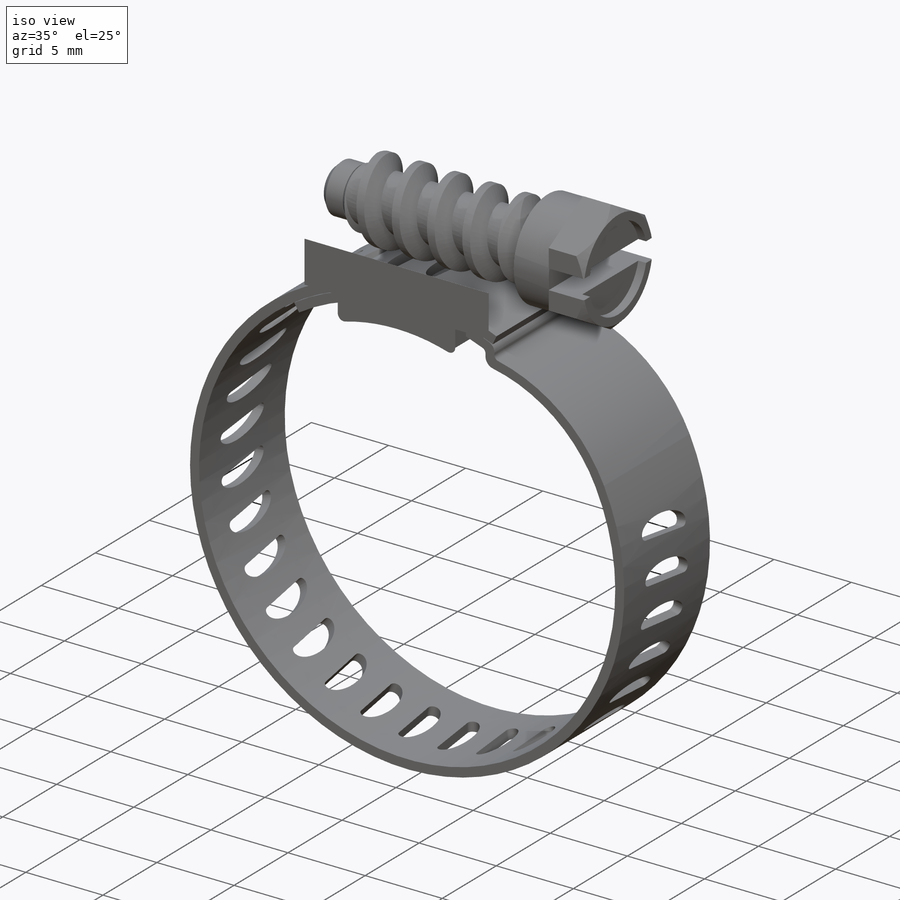
[diagram: iso view]
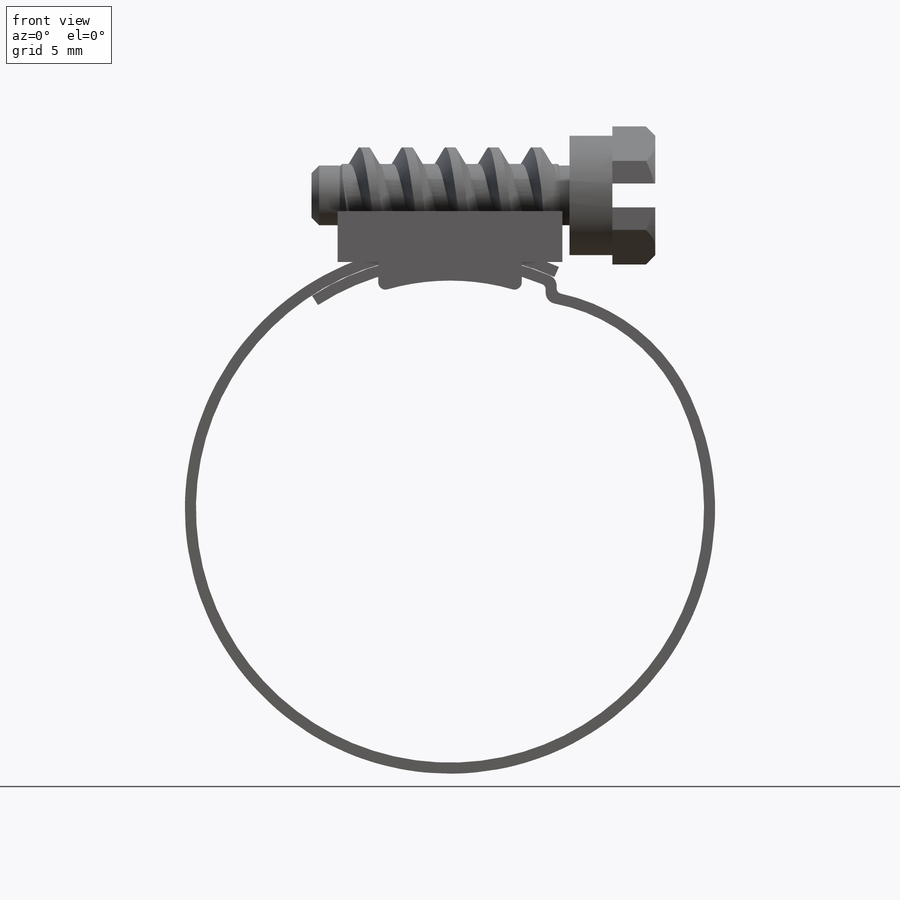
[diagram: front view]
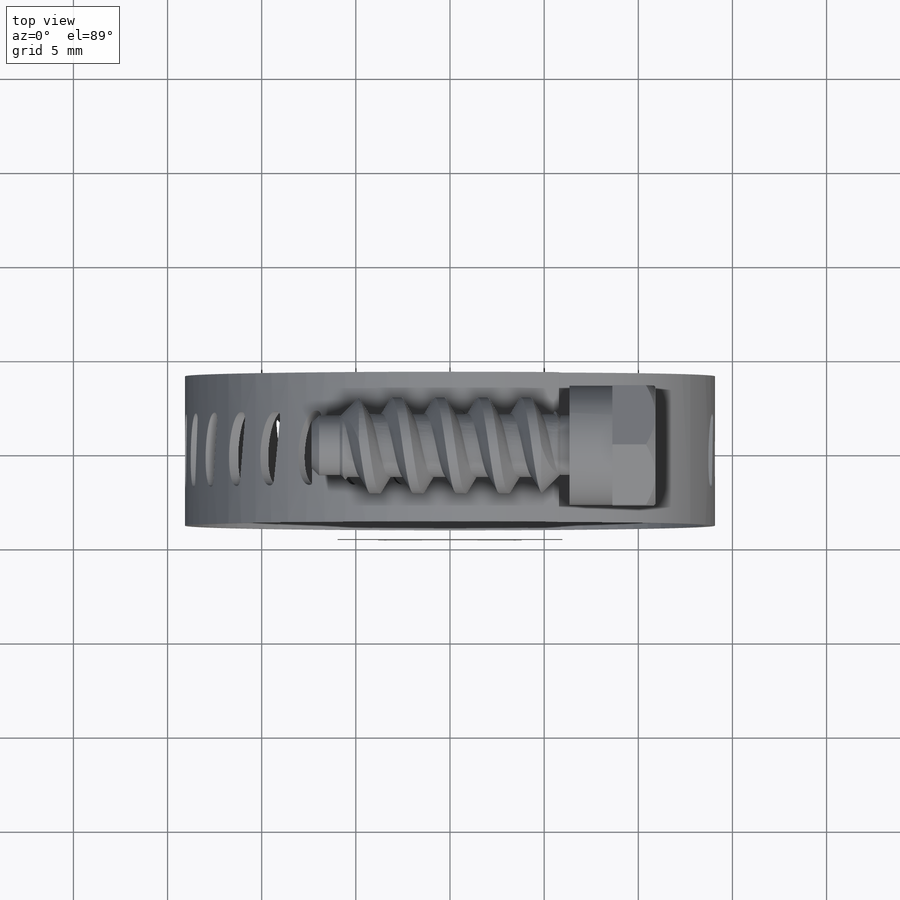
[diagram: top view]
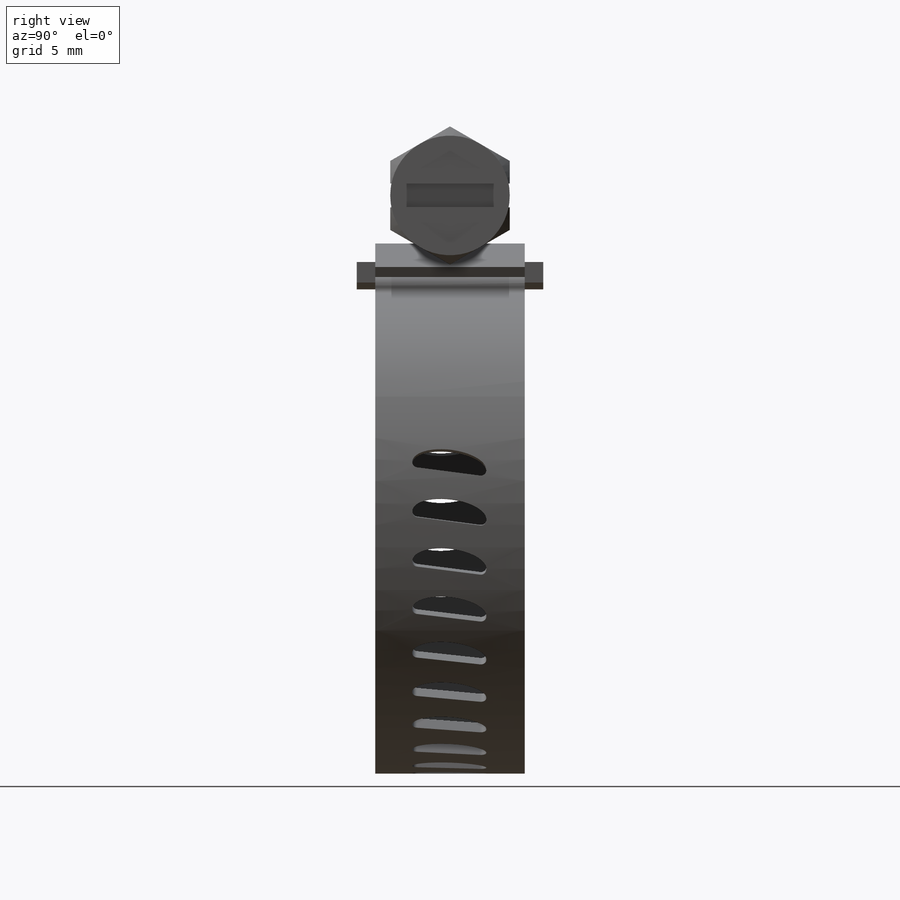
[diagram: right view]
SOLIDWORKS PART (.sldprt)
format: sldprt  version: not decoded by parser v0  size: 1,416,704 bytes
history: native  units: mm
features: sketch x19, extrude x5, fillet x5, cut_extrude x4, plane x2, revolve x2, chamfer x2, material x1, shell x1, helix x1, sweep x1, cut_revolve x1 (+16 scaffold rows collapsed; 1 parser-record rows omitted)
feature tree (61):
  scaffold x16  (default folders/planes/origin — collapsed)
  material  "Material <not specified>"
  sketch  "Sketch1"  dims[c1.Clamp ID=26.9875mm c1.D7=~154.447183mm c1.D3=11.176mm c1.Hex Size=6.35mm c1.Housing Lg=~18.25625mm c1.D5=12.7mm c1.D6=~1.004094mm c2.D7=~1.00584mm c2.D8=7.62mm c2.D9=4.7625mm c2.D10=0.3175mm c3.D7=~1.38684mm c3.D11=~0.33528mm c3.D3=11.176mm c3.D10=0.4445mm c4.D11=~6.41477mm c4.Housing Ht=8.636mm c4.Band Thickness=0.5842mm c4.D1=0.0508mm c4.D2=0.5842mm]
  sketch  "Sketch2"  dims[c1.D1=~155.874121mm c1.D4=57.15mm c1.D5=~9.312275mm c1.D8=~37.959746mm c2.D1=~154.729866mm c3.D1=7.5deg c4.D1=~154.56916mm c5.D1=7.5deg c5.D2=~154.56916mm c6.D2=3.0deg c6.D3=~151.773644mm c7.D3=45.0deg c8.D3=~154.56916mm c9.D3=30.0deg c9.D4=~155.758025mm c10.D4=30.0deg c10.D1=0.6096mm c10.D2=~155.395674mm c11.D2=~49.070947deg c11.D3=1143.0mm c12.D2=45.0deg c12.D1=0.6096mm c12.D4=1.5875mm c12.D3=57.15mm c13.D3=~41.560504deg c13.D4=57.15mm c14.D4=45.0deg c15.D4=57.15mm c15.D2=~14.799556mm c15.D1=~1.465674mm c16.D1=45.0deg c16.D2=0.6096mm c17.D1=~154.785368mm c18.D1=45.0deg c18.D2=~3.544094mm c18.D5=~6.763743mm c19.D1=~1.750902mm c20.D1=45.0deg c20.D6=0.8763mm c20.D7=0.6096mm c21.D1=~1.150524mm c22.D1=45.0deg c22.D7=0.8763mm c23.D1=~1.965947mm c24.D1=25.0deg c24.D8=~34.403213mm c25.D1=12.7mm c25.D4=~69.475558mm c25.D5=~3.544094mm c25.D8=~9.257802mm c25.D3=0.6096mm c25.D6=0.6096mm]
  plane  "Plane2"  Offset=7.9375mm Band Width=7.9375mm
  parser-record x1  (decoder bookkeeping rows leaked as tree rows — omitted from the tree; the rows remain in map.json)
  sketch  "Sketch3"  dims[c1.D1=4.7625mm c1.Housing Width=9.906mm c1.D3=1.5875mm c1.D2=0.4953mm c2.D3=~0.842326mm c2.D4=3.175mm c2.D1=3.175mm]
  extrude  "Boss-Extrude1"  [1 undecoded]
  shell  "Shell2"  Thickness=0.4953mm
  sketch  "Sketch4"  dims[D1=0.0508mm]
  extrude  "Boss-Extrude2"  [1 undecoded]
  sketch  "Sketch6"  dims[c1.D1=~2.379173mm c2.D1=35.0deg c2.D2=~2.558939mm c3.D2=35.0deg c3.D1=~2.373279mm c4.D1=35.0deg c4.D2=~2.610463mm c5.D2=35.0deg c5.D1=~2.89622mm]
  extrude  "Boss-Extrude9"  [1 undecoded]
  sketch  "Sketch7"
  extrude  "Boss-Extrude10"  [1 undecoded]
  sketch  "Sketch25"
  cut_extrude  "Cut-Extrude3"  [1 undecoded]
  fillet  "Fillet3"  Radius=0.381mm
  fillet  "Fillet8"  Radius=0.762mm
  plane  "Plane1"
  sketch  "Sketch10"
  revolve  "Revolve1"  Angle=360deg
  sketch  "Sketch29"  dims[D1=0.0mm]
  helix  "Helix/Spiral1"  Pitch=19.05mm
  chamfer  "Chamfer2"  Distance=1.016mm Angle=45deg
  sketch  "Sketch30"  dims[c1.D1=1.778mm c1.D2=0.762mm c1.D3=~1.038053mm c2.D3=60.0deg]
  sweep  "Cut-Sweep1"
  sketch  "Sketch31"  dims[c1.D1=3.175mm c1.D2=1.5875mm c2.D1=3.175mm c2.D3=1.5875mm]
  revolve  "Revolve3"  Angle=360deg
  sketch  "Sketch13"  dims[D1=6.35mm]
  extrude  "Boss-Extrude7"  [1 undecoded]
  sketch  "Sketch15"
  cut_extrude  "Cut-Extrude1"  [1 undecoded]
  sketch  "Sketch16"  dims[c1.D1=1.27mm c1.D2=~4.582718mm c2.D2=~9.905236deg]
  cut_extrude  "Cut-Extrude2"  [1 undecoded]
  sketch  "Sketch32"  dims[D1=0.508mm]
  cut_extrude  "Cut-Extrude4"  Depth=0.508mm
  sketch  "Sketch18"
  cut_revolve  "Cut-Revolve1"  Angle=360deg
  chamfer  "Chamfer3"  Distance=0.401638mm Angle=45deg
  fillet  "Fillet7"  Radius=0.381mm
  sketch  "Sketch20"  dims[c1.D1=1.1811mm c2.D1=0.0mm c3.D1=0.5842mm c4.D1=-7.5deg c5.D1=27.0 c5.D3=2.54mm c5.D2=1.0 c5.D4=2.54mm]
  fillet  "Fillet9"  Radius=0.2921mm
  fillet  "Fillet10"  Radius=0.5842mm
  sketch  "Ref"  dims[D1=7.9375mm]
  sketch  "Ref 2"
decode coverage: 26 of 41 modeling features carry decoded parameters
note: ~ marks probable driven/reference dimensions
note: 8 parameter values undecoded
summary: no parameter record found for 8 features
note: suppression state not decoded; provenance and decode notes live in map.json
